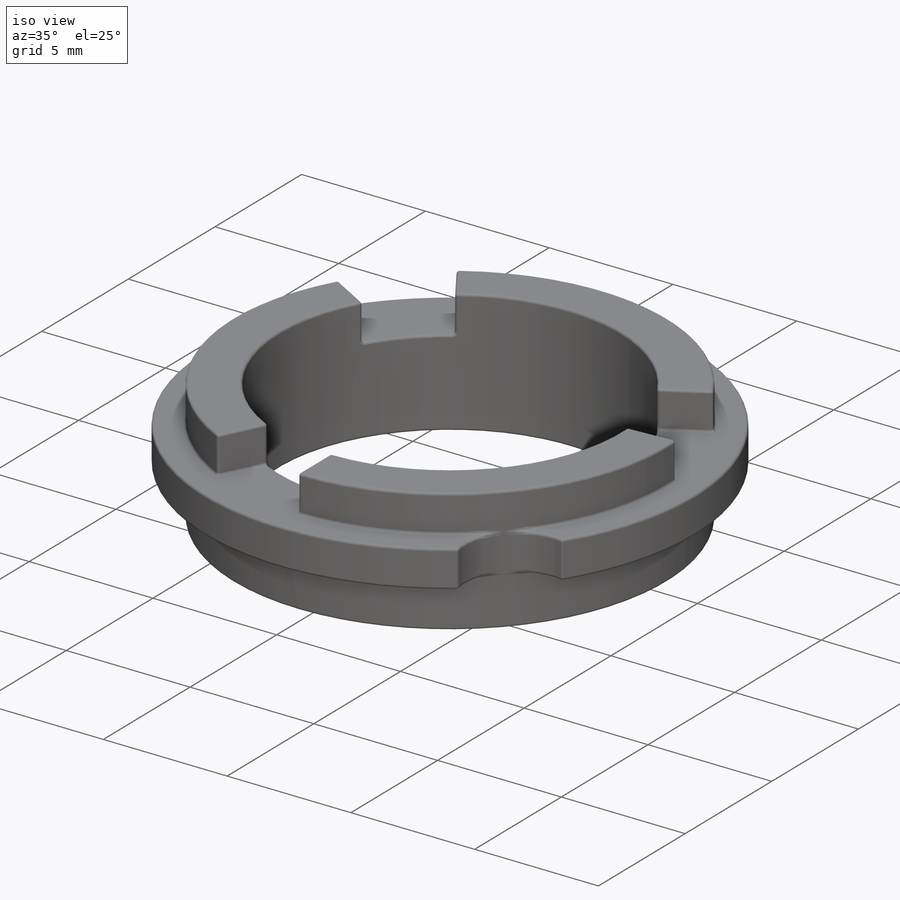
[diagram: iso view]
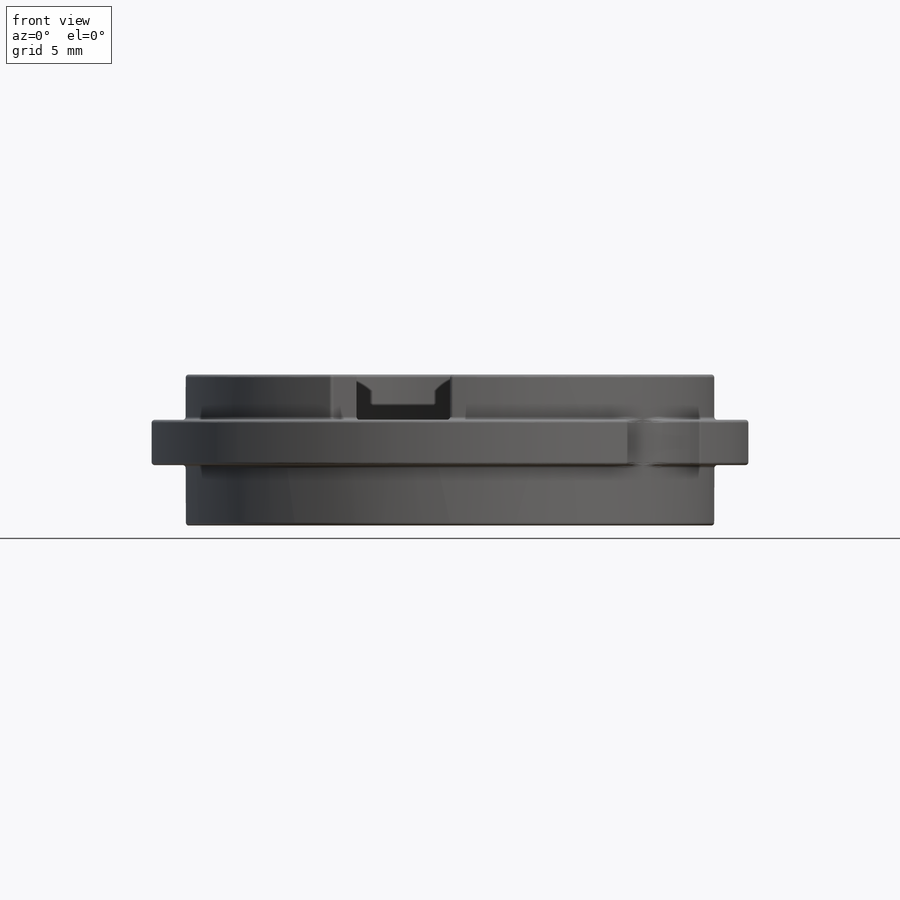
[diagram: front view]
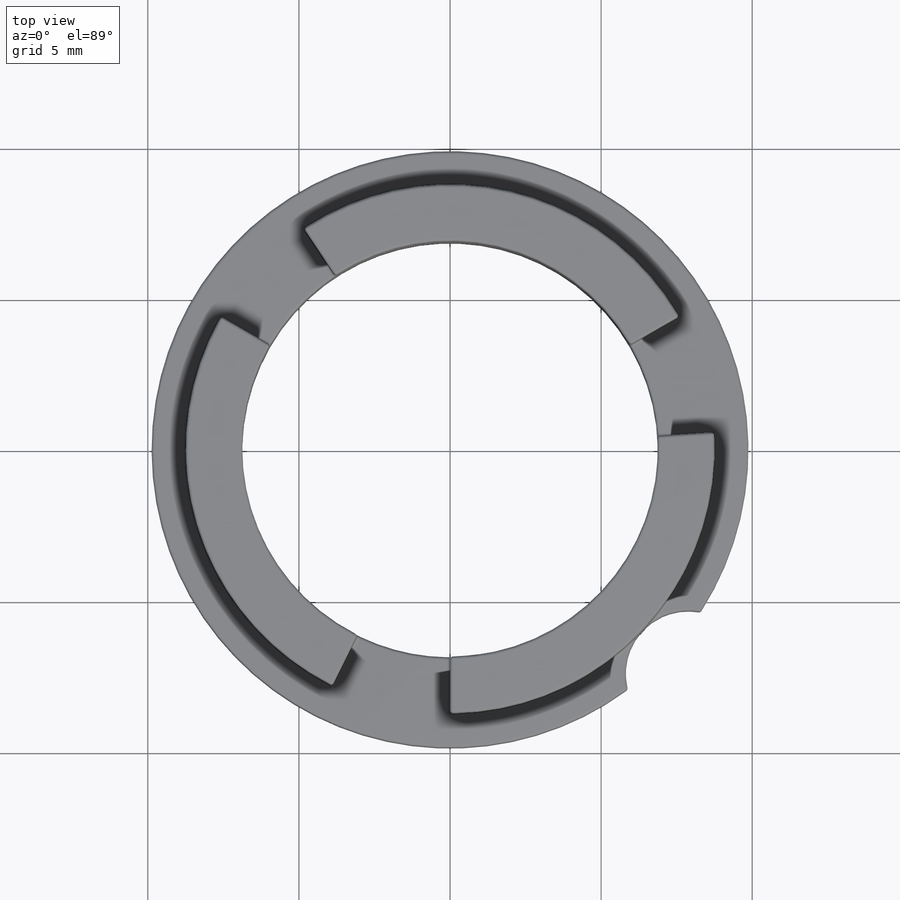
[diagram: top view]
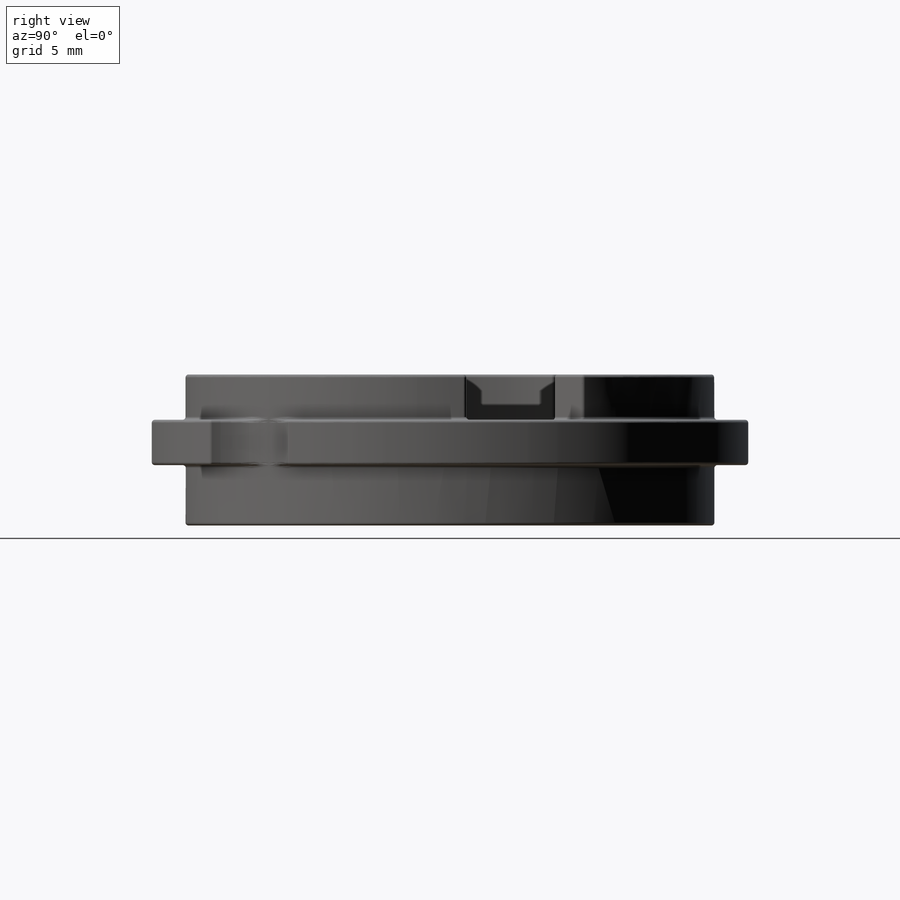
[diagram: right view]
SOLIDWORKS PART (.sldprt)
format: sldprt  version: not decoded by parser v0  size: 662,528 bytes
history: native  units: mm
features: sketch x5, cut_extrude x4, fillet x2, material x1, extrude x1 (+11 scaffold rows collapsed)
feature tree (24):
  scaffold x11  (default folders/planes/origin — collapsed)
  material  "Material <not specified>"
  sketch  "Sketch1"  dims[D1=19.75mm D2=13.75mm]
  extrude  "Boss-Extrude1"  Depth=5mm
  sketch  "Sketch2"  dims[D1=17.5mm]
  cut_extrude  "Cut-Extrude1"  Depth=2mm
  sketch  "Sketch3"  dims[D1=17.5mm]
  cut_extrude  "Cut-Extrude2"  Depth=1.5mm
  sketch  "Sketch4"  dims[c1.D1=4.0mm c1.D2=4.0mm c1.D3=4.0mm c1.D4=8.75mm c2.D4=120.0deg c2.D5=4.375mm c3.D5=120.0deg c3.D6=~3.142857mm c3.D7=~3.142857mm c3.D8=~3.142857mm c3.D9=1.875mm c4.D9=1.875mm c4.D10=1.875mm c4.D11=~1.871353mm c4.D1=~2.785656mm]
  cut_extrude  "Cut-Extrude3"  Depth=1.5mm
  sketch  "Sketch5"  dims[D1=3.5mm]
  cut_extrude  "Cut-Extrude4"  Depth=1.5mm
  fillet  "Fillet1"  Radius=0.1mm
  fillet  "Fillet2"  Radius=0.1mm
decode coverage: 12 of 12 modeling features carry decoded parameters
note: ~ marks probable driven/reference dimensions
note: suppression state not decoded; provenance and decode notes live in map.json
